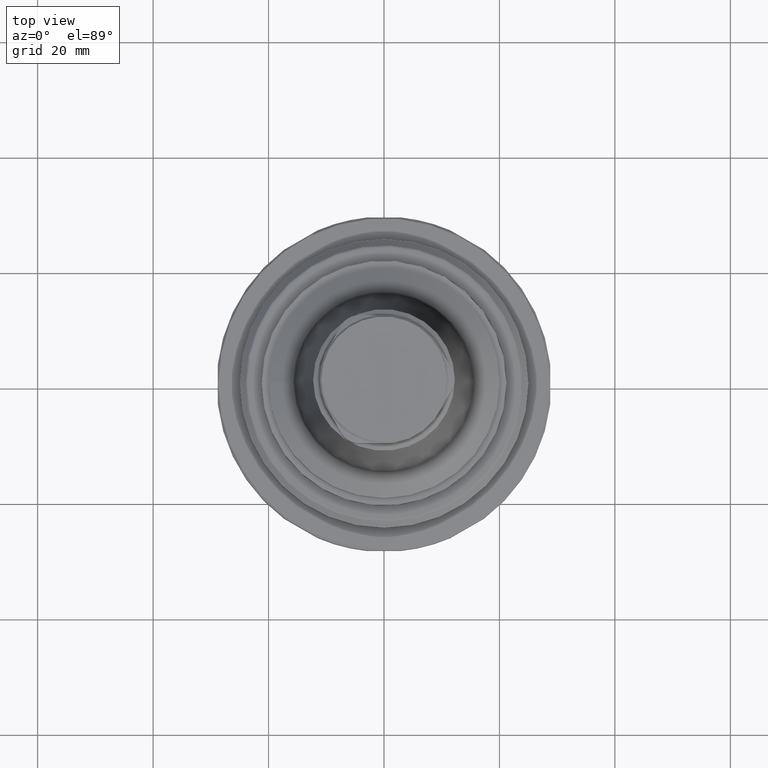
[diagram: clean part render]
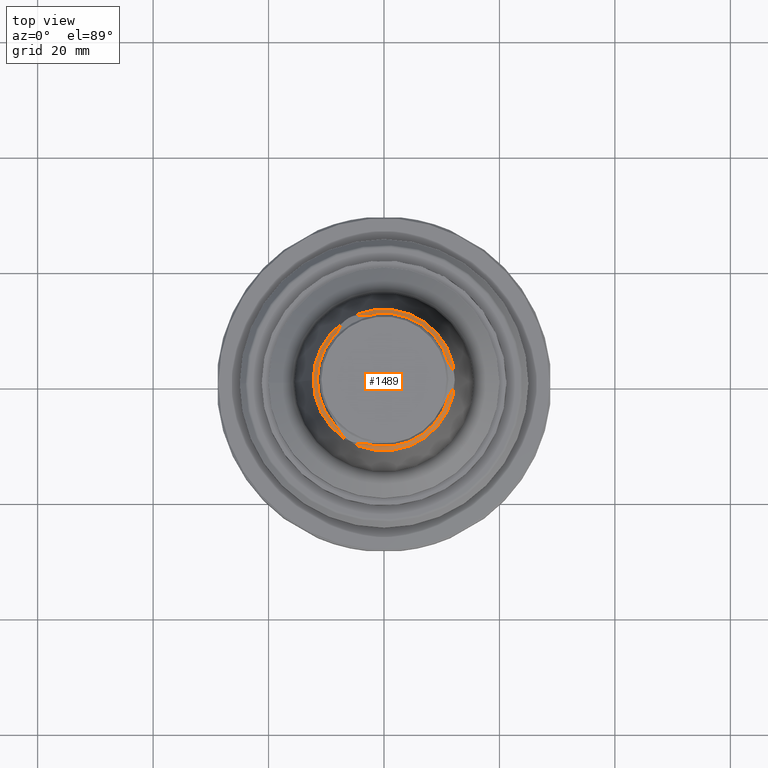
[diagram: same view with one face highlighted and labeled with its STEP entity id]
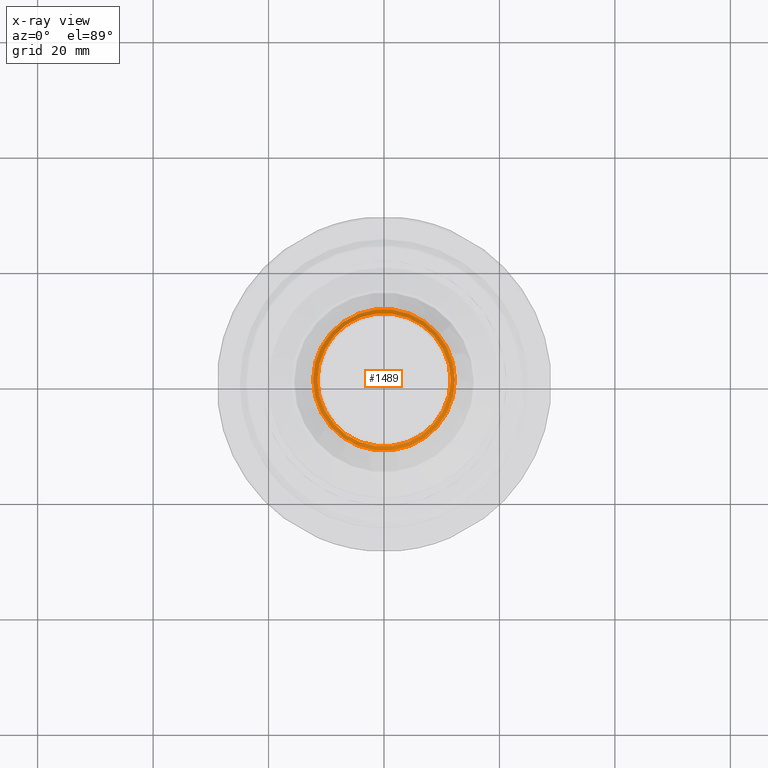
[diagram: x-ray of the same camera — body ghosted, the highlighted face saturated]
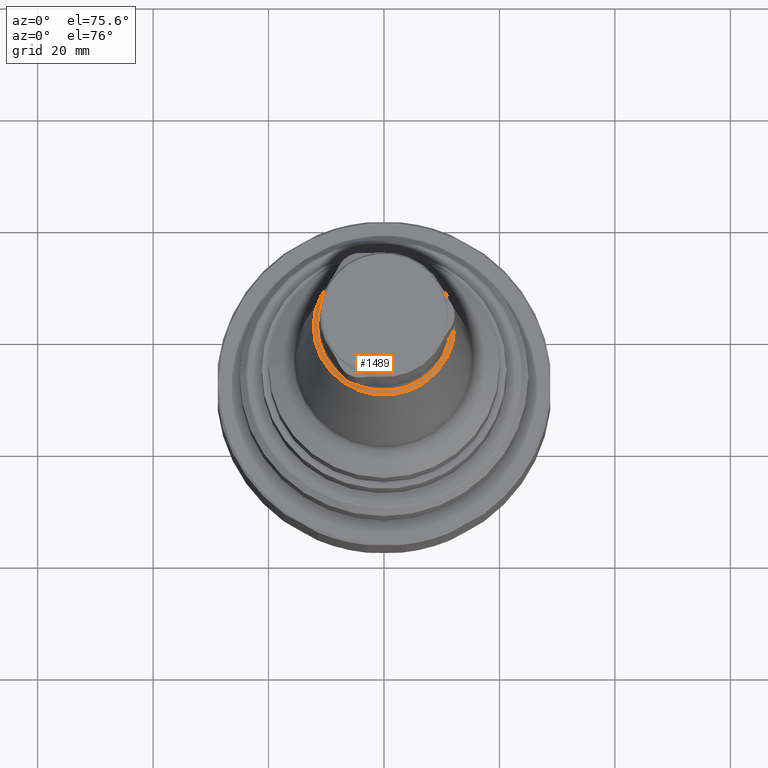
[diagram: same view with one face highlighted and labeled with its STEP entity id]
A machine part, top view. The second image highlights one B-rep face of the part: STEP entity #1489.
The next image is the same camera in x-ray: the body ghosted, the highlighted face saturated — about 0% of this face is hidden behind the body in this view.
A second angle (auxiliary view) of the same face is appended — the face is thin or edge-on in the first view.
In plain terms, the highlighted conical surface has half-angle 60 deg.
Its self-contained STEP definition (entity closure, byte-faithful):
#271=CONICAL_SURFACE('',#1645,12.2706905250473,1.0471975511966);
#546=ORIENTED_EDGE('',*,*,#824,.T.);
#547=ORIENTED_EDGE('',*,*,#825,.F.);
#824=EDGE_CURVE('',#987,#987,#1080,.T.);
#825=EDGE_CURVE('',#988,#988,#1081,.T.);
#987=VERTEX_POINT('',#2559);
#988=VERTEX_POINT('',#2562);
#1080=CIRCLE('',#1644,11.55);
#1081=CIRCLE('',#1646,12.2706905250473);
#1191=EDGE_LOOP('',(#546));
#1192=EDGE_LOOP('',(#547));
#1329=FACE_BOUND('',#1191,.T.);
#1330=FACE_BOUND('',#1192,.T.);
#1489=ADVANCED_FACE('',(#1329,#1330),#271,.T.);
#1644=AXIS2_PLACEMENT_3D('',#2558,#1982,#1983);
#1645=AXIS2_PLACEMENT_3D('',#2560,#1984,#1985);
#1646=AXIS2_PLACEMENT_3D('',#2561,#1986,#1987);
#1982=DIRECTION('',(2.49783760049311E-16,-7.79579225983867E-33,-1.));
#1983=DIRECTION('',(-1.,6.12303176911188E-17,-2.49783760049311E-16));
#1984=DIRECTION('',(2.49783760049311E-16,-7.79579225983867E-33,-1.));
#1985=DIRECTION('',(-1.,6.12303176911188E-17,-2.49783760049311E-16));
#1986=DIRECTION('',(2.49783760049311E-16,-7.79579225983867E-33,-1.));
#1987=DIRECTION('',(-1.,6.12303176911188E-17,-2.49783760049311E-16));
#2558=CARTESIAN_POINT('',(-3.68466879433966E-15,-6.65681135439398E-32,38.9650908686385));
#2559=CARTESIAN_POINT('',(-11.55,7.07210169332422E-16,38.9650908686385));
#2560=CARTESIAN_POINT('',(-3.58073605264896E-15,-6.98118715170611E-32,38.549));
#2561=CARTESIAN_POINT('',(-3.58073605264896E-15,-6.98118715170611E-32,38.549));
#2562=CARTESIAN_POINT('',(-12.2706905250473,7.51338279138048E-16,38.549));